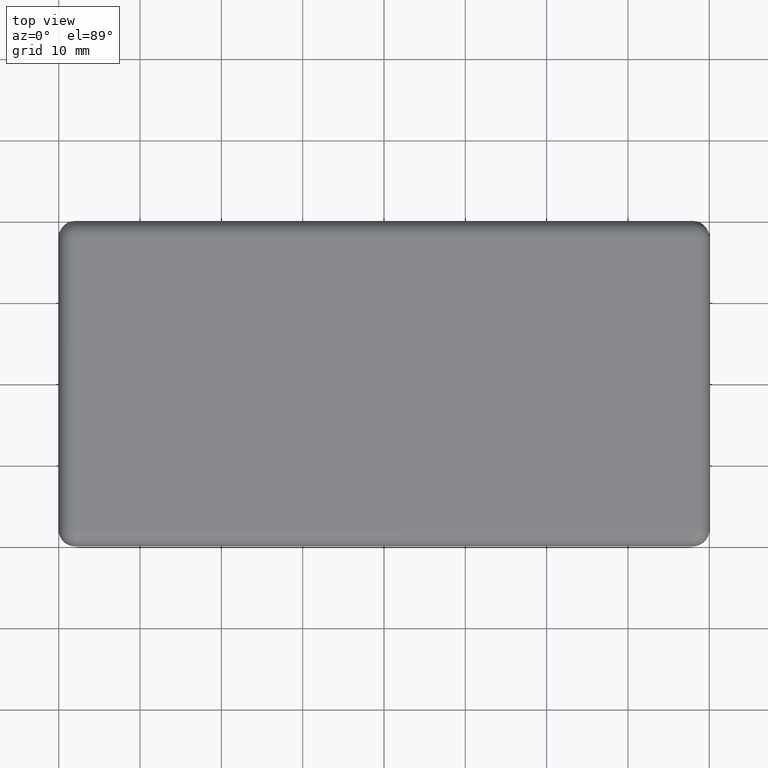
[diagram: clean part render]
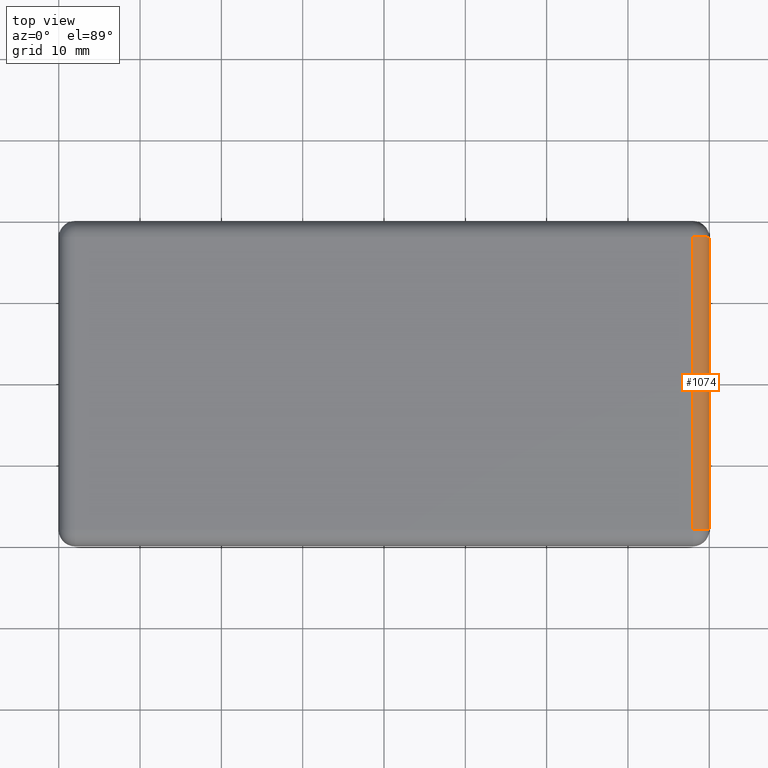
[diagram: same view with one face highlighted and labeled with its STEP entity id]
A machine part, top view. The second image highlights one B-rep face of the part: STEP entity #1074.
In plain terms, the highlighted cylindrical surface (edge-blend (fillet) strip) has radius 2 mm, axis along (-0, 1, 0).
Its self-contained STEP definition (entity closure, byte-faithful):
#35=LINE('',#1682,#103);
#36=LINE('',#1686,#104);
#103=VECTOR('',#1351,36.);
#104=VECTOR('',#1354,36.);
#211=CYLINDRICAL_SURFACE('',#1168,2.);
#260=FACE_OUTER_BOUND('',#348,.T.);
#348=EDGE_LOOP('',(#766,#767,#768,#769));
#427=CIRCLE('',#1169,2.);
#428=CIRCLE('',#1170,2.);
#495=VERTEX_POINT('',#1680);
#496=VERTEX_POINT('',#1681);
#497=VERTEX_POINT('',#1683);
#498=VERTEX_POINT('',#1685);
#599=EDGE_CURVE('',#495,#496,#35,.T.);
#600=EDGE_CURVE('',#496,#497,#427,.F.);
#601=EDGE_CURVE('',#497,#498,#36,.T.);
#602=EDGE_CURVE('',#498,#495,#428,.F.);
#766=ORIENTED_EDGE('',*,*,#599,.T.);
#767=ORIENTED_EDGE('',*,*,#600,.T.);
#768=ORIENTED_EDGE('',*,*,#601,.T.);
#769=ORIENTED_EDGE('',*,*,#602,.T.);
#1074=ADVANCED_FACE('',(#260),#211,.T.);
#1168=AXIS2_PLACEMENT_3D('',#1679,#1349,#1350);
#1169=AXIS2_PLACEMENT_3D('',#1684,#1352,#1353);
#1170=AXIS2_PLACEMENT_3D('',#1687,#1355,#1356);
#1349=DIRECTION('center_axis',(-1.11022302462516E-16,1.,0.));
#1350=DIRECTION('ref_axis',(0.707106781186548,0.,0.707106781186547));
#1351=DIRECTION('',(1.11022302462516E-16,-1.,0.));
#1352=DIRECTION('center_axis',(0.,-1.,0.));
#1353=DIRECTION('ref_axis',(0.,0.,1.));
#1354=DIRECTION('',(-1.11022302462516E-16,1.,0.));
#1355=DIRECTION('center_axis',(0.,1.,0.));
#1356=DIRECTION('ref_axis',(1.,0.,0.));
#1679=CARTESIAN_POINT('Origin',(38.,-10.,1.));
#1680=CARTESIAN_POINT('',(38.,18.,3.));
#1681=CARTESIAN_POINT('',(38.,-18.,3.));
#1682=CARTESIAN_POINT('',(38.,-10.,3.));
#1683=CARTESIAN_POINT('',(40.,-18.,1.));
#1684=CARTESIAN_POINT('Origin',(38.,-18.,1.));
#1685=CARTESIAN_POINT('',(40.,18.,1.));
#1686=CARTESIAN_POINT('',(40.,-10.,1.));
#1687=CARTESIAN_POINT('Origin',(38.,18.,1.));